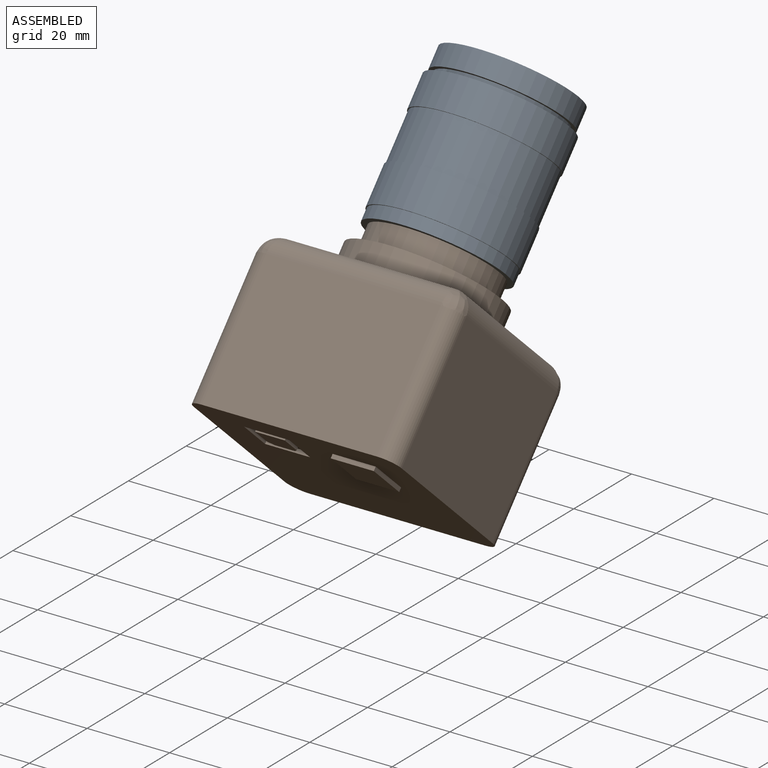
[diagram: assembled view]
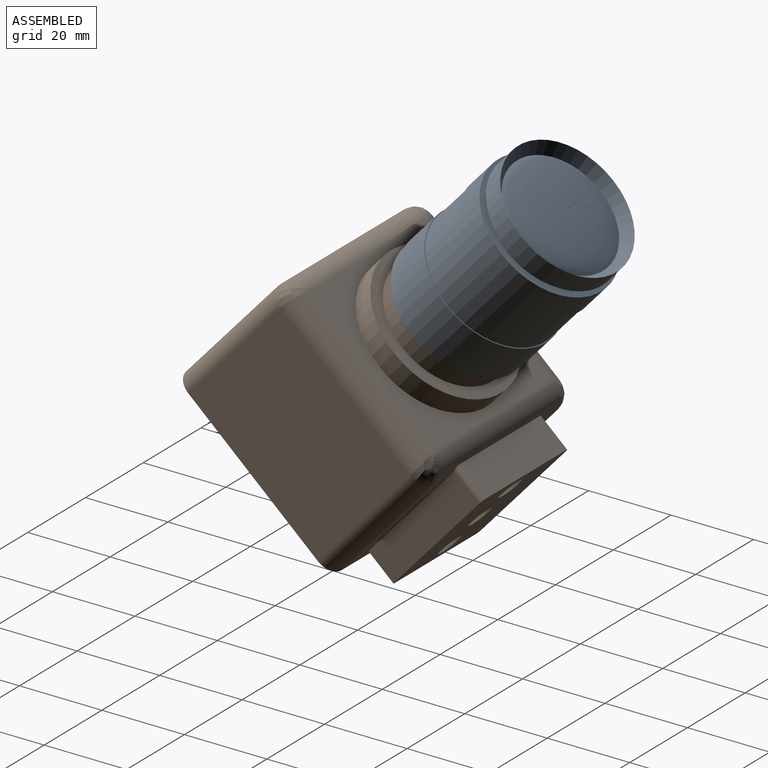
[diagram: assembled view, second angle]
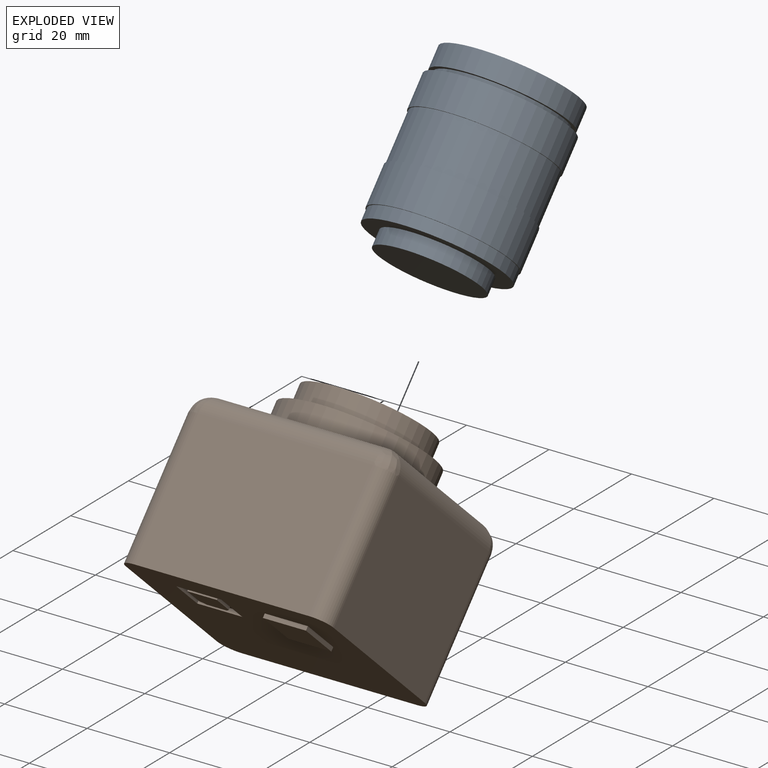
[diagram: exploded view]
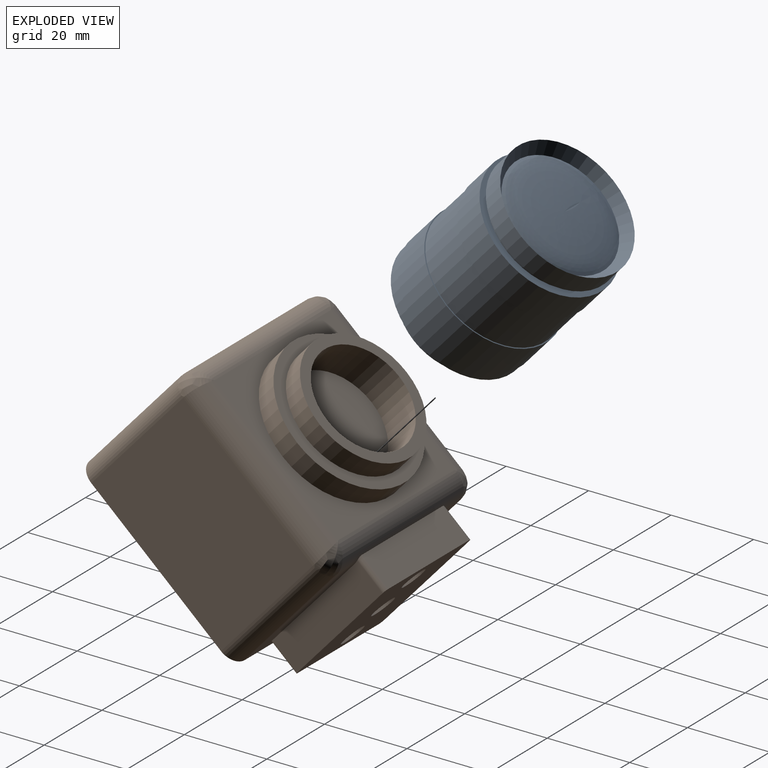
[diagram: exploded view, second angle]
ASSEMBLY  parts=2 mates=2
PART A: 16 faces, bbox 33.5x33.5x42.7 mm
  f0: revolved ~27.98x27.98mm, area 626.2mm2, adj f15
  f1: plane 25x25mm, normal (0,0,-1), area 490.9mm2, adj f2
  f2: cylinder r=12.5mm len=25mm, axis (0,0,1), area 302.4mm2, adj f1,f3
  f3: plane 33x33mm, normal (0,0,-1), area 364.4mm2, adj f2,f4
  f4: cylinder r=16.5mm len=33mm, axis (0,0,1), area 311mm2, adj f3,f5
  f5: plane 33.5x33.5mm, normal (0,0,-1), area 26.1mm2, adj f4,f6
  f6: cylinder r=16.75mm len=33.5mm, axis (0,0,1), area 999.8mm2, adj f5,f7
  f7: plane 33.5x33.5mm, normal (0,0,1), area 26.1mm2, adj f6,f8
  f8: cylinder r=16.5mm len=33mm, axis (0,0,1), area 1244.1mm2, adj f7,f9
  f9: plane 33.5x33.5mm, normal (0,0,-1), area 26.1mm2, adj f8,f10
  f10: cylinder r=16.75mm len=33.5mm, axis (0,0,1), area 841.9mm2, adj f9,f11
  f11: plane 33.5x33.5mm, normal (0,0,1), area 174.6mm2, adj f10,f12
  f12: cylinder r=15mm len=30mm, axis (0,0,1), area 106.5mm2, adj f11,f13
  f13: plane 32x32mm, normal (0,0,-1), area 97.4mm2, adj f12,f14
  f14: cylinder r=16mm len=32mm, axis (0,0,1), area 522.8mm2, adj f13,f15
  f15: cone r=13.99mm half-angle=37.8deg, axis (0,0,1), area 308.7mm2, adj f0,f14
PART B: 56 faces, bbox 50.4x58.5x49.6 mm
  f0: bspline ~5x5mm, area 32.1mm2, adj f1,f37,f43
  f1: cylinder r=5mm len=42.4mm, axis (1,0,0), area 258.9mm2, adj f0,f2,f3,f7,f23,f24,f25,f32
  f2: cylinder r=1mm len=8.63mm, axis (0,1,0), area 13.3mm2, adj f1,f18,f24,f25
  f3: cylinder r=1mm len=8.63mm, axis (0,-1,0), area 13.3mm2, adj f1,f18,f23,f24
  f4: cylinder r=1mm len=8.14mm, axis (0,1,0), area 12.8mm2, adj f7,f18,f22,f23
  f5: cylinder r=1mm len=8.14mm, axis (0,-1,0), area 12.8mm2, adj f7,f18,f22,f25
  f6: plane 50.4x50.4mm, normal (0,0,-1), area 2295.9mm2, adj f7,f9,f14,f15,f16,f17,f33,f34
  f7: plane 42.4x33.2mm, normal (0,-1,0), area 491.6mm2, adj f1,f4,f5,f6,f22,f23,f25,f42
  f8: plane 7.2x6.74mm, normal (0,0,-1), area 47.2mm2, adj f11,f12,f13,f50,f51,f52
  f9: plane 11.85x1mm, normal (-1,0,0), area 11.9mm2, adj f6,f46,f47,f49
  f10: plane 10.92x9.76mm, normal (0,0,-1), area 59.4mm2, adj f11,f12,f13,f14,f15,f16,f17,f50
  f11: plane 5.58x1mm, normal (-1,0,0), area 5.6mm2, adj f8,f10,f12,f13
  f12: plane 1.16x1.05mm, normal (-0.74,-0.67,0), area 1.6mm2, adj f8,f10,f11,f52
  f13: plane 7.2x1mm, normal (0,1,0), area 7.2mm2, adj f8,f10,f11,f50
  f14: plane 10.92x1mm, normal (0,1,0), area 10.9mm2, adj f6,f10,f15,f17
  f15: plane 9.76x1mm, normal (-1,0,0), area 9.8mm2, adj f6,f10,f14,f16
  f16: plane 10.92x1mm, normal (0,-1,0), area 10.9mm2, adj f6,f10,f15,f17
  f17: plane 9.76x1mm, normal (1,0,0), area 9.8mm2, adj f6,f10,f14,f16
  f18: plane 32.7x30mm, normal (0,-1,0), area 895.3mm2, adj f2,f3,f4,f5,f19,f20,f21,f22
  f19: cylinder r=3mm len=8.14mm, axis (0,-1,0), area 153.4mm2, adj f18,f53
  f20: cylinder r=3mm len=8.14mm, axis (0,-1,0), area 153.4mm2, adj f18,f55
  f21: cylinder r=3mm len=8.14mm, axis (0,-1,0), area 153.4mm2, adj f18,f54
  f22: plane 28x8.14mm, normal (0,0,-1), area 227.9mm2, adj f4,f5,f7,f18
  f23: plane 30.7x8.27mm, normal (-1,0,0), area 249.9mm2, adj f1,f3,f4,f7,f18
  f24: plane 28x8.63mm, normal (0,0,1), area 241.5mm2, adj f1,f2,f3,f18
  f25: plane 30.7x8.27mm, normal (1,0,0), area 249.9mm2, adj f1,f2,f5,f7,f18
  f26: plane 25x25mm, normal (0,0,1), area 490.9mm2, adj f27
  f27: cylinder r=12.5mm len=25mm, axis (0,0,-1), area 785.4mm2, adj f26,f28
  f28: plane 30.1x30.1mm, normal (0,0,1), area 220.7mm2, adj f27,f29
  f29: cylinder r=15.05mm len=30.1mm, axis (0,0,1), area 482.3mm2, adj f28,f30
  f30: plane 36x36mm, normal (0,0,1), area 306.3mm2, adj f29,f31
  f31: cylinder r=18mm len=36mm, axis (0,0,1), area 599.4mm2, adj f30,f32
  f32: plane 40.4x40.4mm, normal (0,0,1), area 614.3mm2, adj f1,f31,f36,f37,f38
  f33: plane 42.4x33.2mm, normal (-1,0,0), area 1407.7mm2, adj f6,f36,f42,f44
  f34: plane 42.4x33.2mm, normal (1,0,0), area 1407.7mm2, adj f6,f37,f43,f45
  f35: plane 42.4x33.2mm, normal (0,1,0), area 1407.7mm2, adj f6,f38,f44,f45
  f36: cylinder r=5mm len=42.4mm, axis (0,-1,0), area 325.2mm2, adj f32,f33,f39,f40
  f37: cylinder r=5mm len=42.4mm, axis (0,1,0), area 325.2mm2, adj f0,f32,f34,f41
  f38: cylinder r=5mm len=42.4mm, axis (-1,0,0), area 325.2mm2, adj f32,f35,f40,f41
  f39: bspline ~5x5mm, area 32.1mm2, adj f1,f36,f42
  f40: bspline ~5x5mm, area 32.1mm2, adj f36,f38,f44
  f41: bspline ~5x5mm, area 32.1mm2, adj f37,f38,f45
  f42: cylinder r=4mm len=33.2mm, axis (0,0,-1), area 208.6mm2, adj f6,f7,f33,f39
  f43: cylinder r=4mm len=33.2mm, axis (0,0,1), area 208.6mm2, adj f0,f6,f7,f34
  f44: cylinder r=4mm len=33.2mm, axis (0,0,1), area 208.6mm2, adj f6,f33,f35,f40
  f45: cylinder r=4mm len=33.2mm, axis (0,0,-1), area 208.6mm2, adj f6,f34,f35,f41
  f46: plane 11.85x10.46mm, normal (0,0,-1), area 123.9mm2, adj f9,f47,f48,f49
  f47: plane 10.46x1mm, normal (0,-1,0), area 10.5mm2, adj f6,f9,f46,f48
  f48: plane 11.85x1mm, normal (1,0,0), area 11.9mm2, adj f6,f46,f47,f49
  f49: plane 10.46x1mm, normal (0,1,0), area 10.5mm2, adj f6,f9,f46,f48
  f50: plane 5.58x1mm, normal (1,0,0), area 5.6mm2, adj f8,f10,f13,f51
  f51: plane 1.28x1.16mm, normal (0.67,-0.74,0), area 1.7mm2, adj f8,f10,f50,f52
  f52: plane 4.88x1mm, normal (0,-1,0), area 4.9mm2, adj f8,f10,f12,f51
  f53: plane 6x6mm, normal (0,-1,0), area 28.3mm2, adj f19
  f54: plane 6x6mm, normal (0,-1,0), area 28.3mm2, adj f21
  f55: plane 6x6mm, normal (0,-1,0), area 28.3mm2, adj f20
PLACE A rot(axis=(0,-0.36,-0.93),180deg) t=(-166.91,-34.23,119.06)mm
PLACE B rot(axis=(0,-0.36,-0.93),180deg) t=(-166.91,-78.53,70.02)mm
MATE cylindrical A.f2 <-> B.f31  axis (0,-0.67,-0.74) through (-166.91,-40.76,111.84)mm
MATE planar B.f29 <-> A.f2  axis (0,0.67,0.74) through (-166.91,-45.95,106.09)mm
